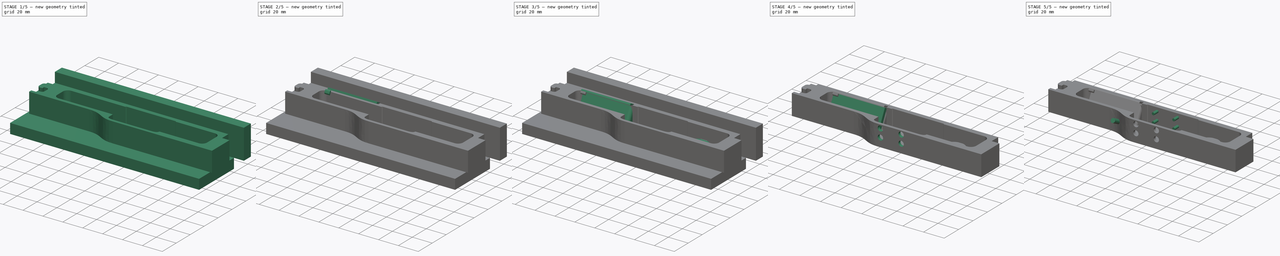
[diagram: build sequence overview — one tinted view per stage of 5, left to right]
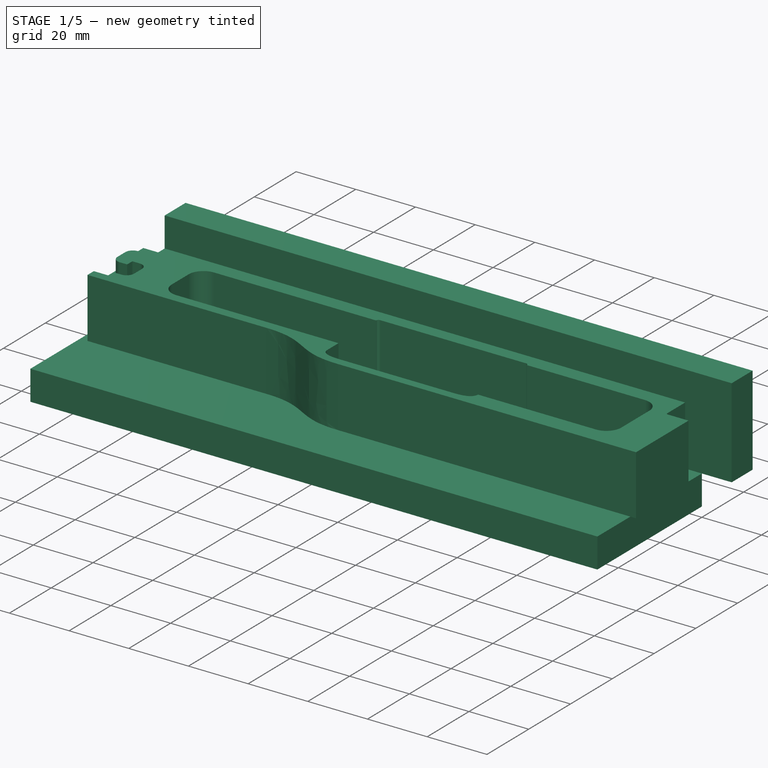
[diagram: stage 1 of 5 — iso view after this stage's code; geometry added in this stage tinted green]
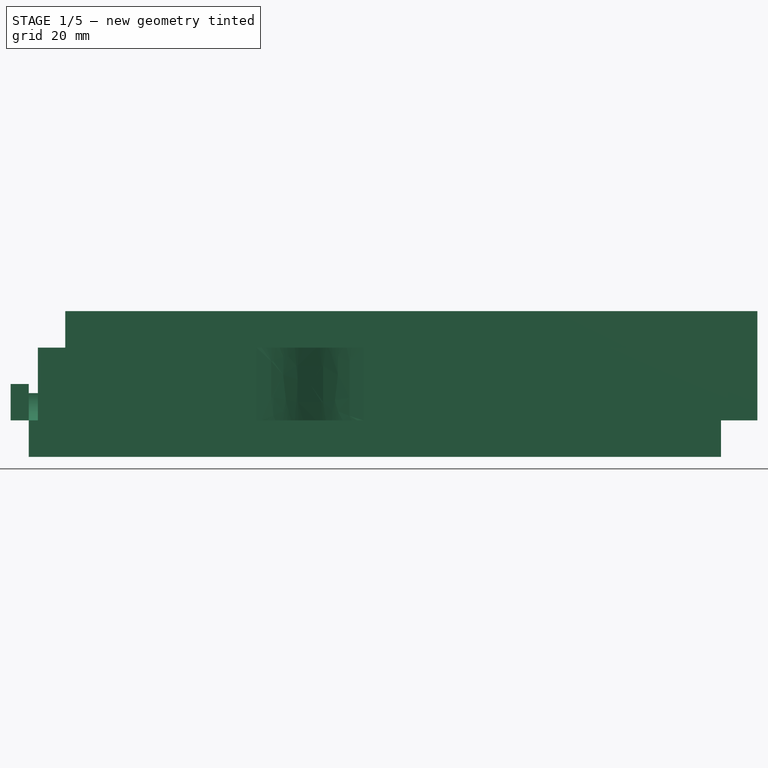
[diagram: stage 1 of 5 — front view after this stage's code; geometry added in this stage tinted green]
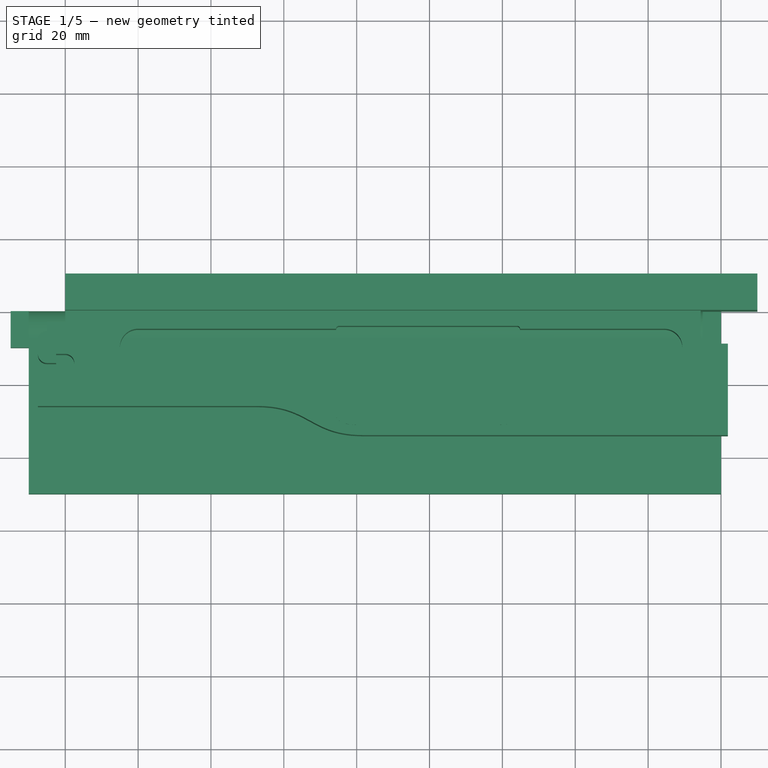
[diagram: stage 1 of 5 — top view after this stage's code; geometry added in this stage tinted green]
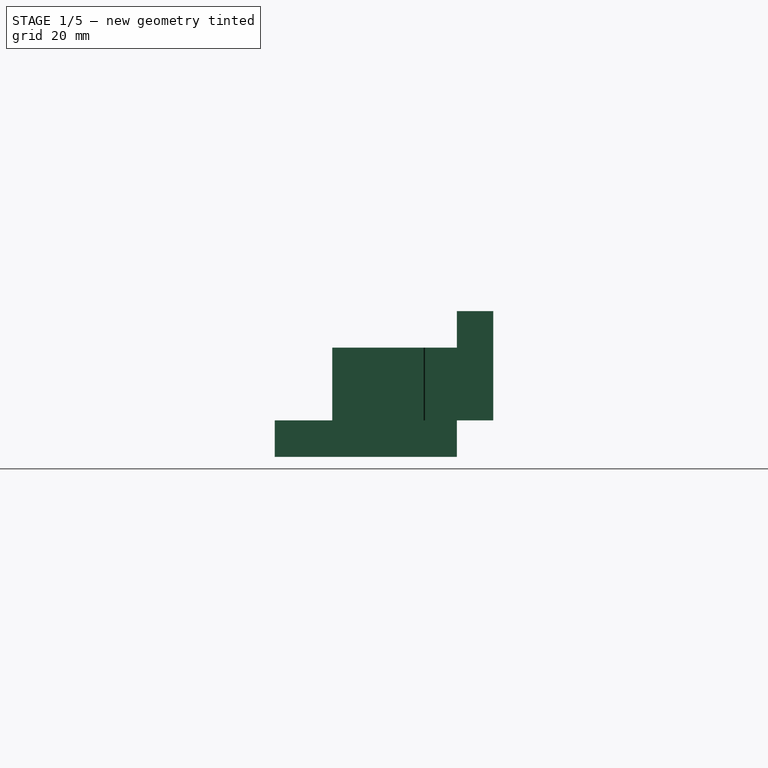
[diagram: stage 1 of 5 — right view after this stage's code; geometry added in this stage tinted green]
FCSTD DOCUMENT  (FreeCAD 0.19R0.19.2)
Label: v0_57
License: All rights reserved
LicenseURL: http://en.wikipedia.org/wiki/All_rights_reserved
objects: Sketcher::SketchObject×16, Part::Extrusion×15, Part::Fillet×8, Part::Cut×6, Part::Box×4, Part::Revolution×1, Part::MultiFuse×1
note: 51 computed .brp shape members not serialized (recipe doc carries the construction recipe); baked Part::Feature solids carry a one-line shape summary decoded from their .brp

FEATURE [Part::Extrusion] Extrude018  label="upperMainBodyExtrude018"
  Base = -> Sketch001
  Dir = (0,0,1)
  DirMode = 2
  FaceMakerClass = Part::FaceMakerBullseye
  LengthFwd = 20
  LengthRev = 0
  Solid = true
  Symmetric = false
FEATURE [Part::Box] Box  label="Cube"
  AttacherType = Attacher::AttachEngine3D
  Height = 10
  Length = 190
  Placement = pos=(-30,0,0) rot=(0,0,1;0rad)
  Width = 10
FEATURE [Part::Fillet] Fillet008
  Base = -> Box
  Edges = 1 edges r=7.5: [Edge11]
FEATURE [Part::Box] Box001  label="Cube001"
  AttacherType = Attacher::AttachEngine3D
  Height = 10
  Length = 190
  Placement = pos=(-35,0,0) rot=(0,0,1;0rad)
  Width = 10
FEATURE [Part::Cut] Cut  label="filletMain"
  Base = -> Box001
  Placement = pos=(0,-10,0) rot=(0,0,1;0rad)
  Tool = -> Fillet008
FEATURE [Part::Box] Box002  label="Cube002"
  AttacherType = Attacher::AttachEngine3D
  Height = 30
  Length = 190
  Placement = pos=(-20,0,0) rot=(0,0,1;0rad)
  Width = 10
FEATURE [Part::Box] Box003  label="Cube003"
  AttacherType = Attacher::AttachEngine3D
  Height = 10
  Length = 190
  Placement = pos=(-30,-50,-10) rot=(0,0,1;0rad)
  Width = 50
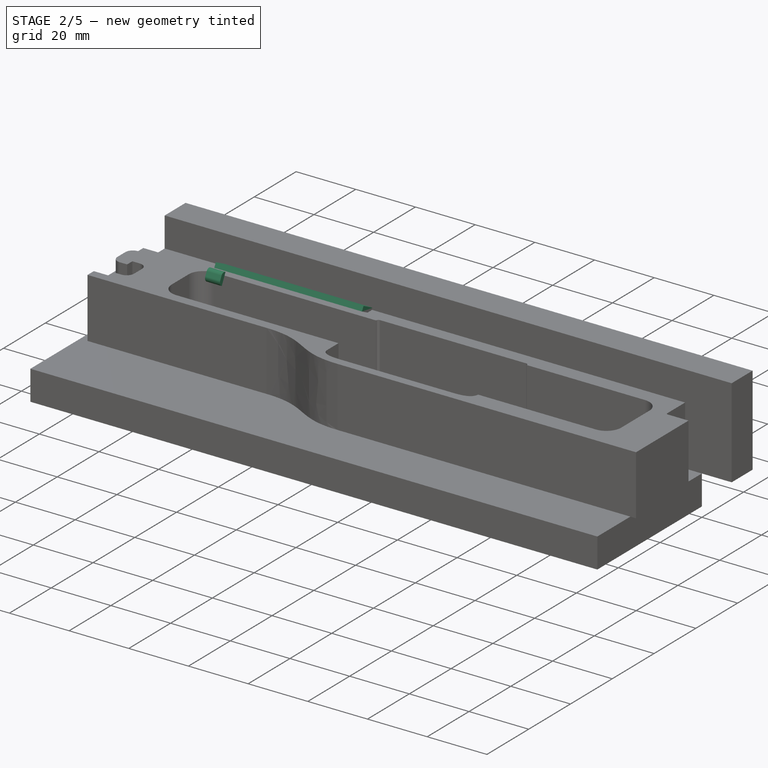
[diagram: stage 2 of 5 — iso view after this stage's code; geometry added in this stage tinted green]
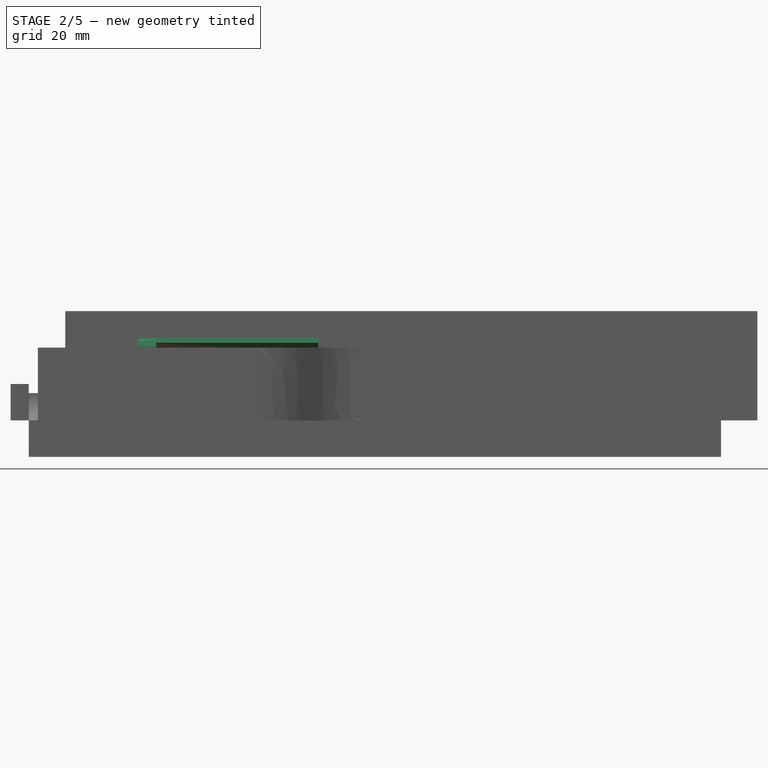
[diagram: stage 2 of 5 — front view after this stage's code; geometry added in this stage tinted green]
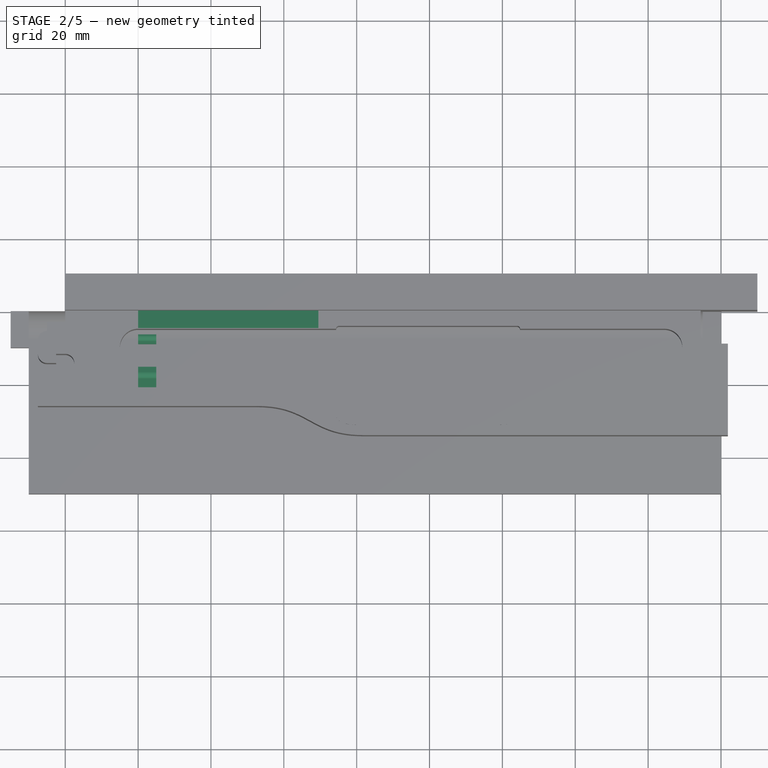
[diagram: stage 2 of 5 — top view after this stage's code; geometry added in this stage tinted green]
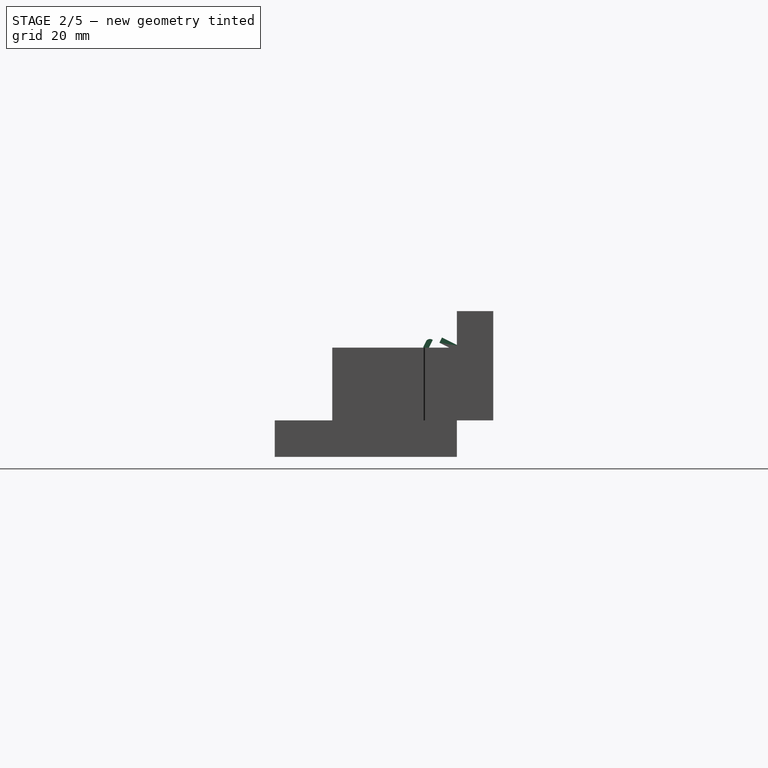
[diagram: stage 2 of 5 — right view after this stage's code; geometry added in this stage tinted green]
FEATURE [Part::Extrusion] Extrude010  label="solenoidDriverTopLipLowerExtrude010"
  Base = -> Sketch012
  Dir = (0,0.894389,-0.447291)
  DirMode = 2
  FaceMakerClass = Part::FaceMakerBullseye
  LengthFwd = 5.05
  LengthRev = 0
  Solid = true
  Symmetric = false
FEATURE [Sketcher::SketchObject] Sketch015
  FullyConstrained = true
  Placement = pos=(0,-14.3,2.37) rot=(-1,0,0;2.03453rad)
  sketch-geometry (4):
    g0: LineSegment StartX=0 StartY=1.5 StartZ=0 EndX=0 EndY=0 EndZ=0
    g1: LineSegment StartX=0 StartY=1.5 StartZ=0 EndX=5 EndY=1.5 EndZ=0
    g2: LineSegment StartX=5 StartY=1.5 StartZ=0 EndX=5 EndY=0 EndZ=0
    g3: LineSegment StartX=0 StartY=0 StartZ=0 EndX=5 EndY=0 EndZ=0
  constraints (13):
    c: Vertical(g0)
    c: Distance(g0) = 1.5
    c: Horizontal(g1)
    c: Distance(g1) = 5
    c: Coincident(g1,g0)
    c: Vertical(g2)
    c: Distance(g2) = 1.5
    c: Coincident(g2,g1)
    c: Block(g1)
    c: Block(g2)
    c: Block(g0)
    c: Coincident(g3,g0)
    c: Coincident(g3,g2)
FEATURE [Part::Extrusion] Extrude013  label="solenoidDriverBottomLipTopExtrude012"
  Base = -> Sketch015
  Dir = (0,0.894389,-0.447291)
  DirMode = 2
  FaceMakerClass = Part::FaceMakerBullseye
  LengthFwd = -6.5
  LengthRev = 0
  Placement = pos=(0,-14.15,19.65) rot=(1,0,0;1.5708rad)
  Solid = true
  Symmetric = false
FEATURE [Sketcher::SketchObject] Sketch017
  FullyConstrained = true
  Placement = pos=(0,-14.3,2.37) rot=(-1,0,0;2.03453rad)
  sketch-geometry (4):
    g0: LineSegment StartX=0 StartY=1.5 StartZ=0 EndX=0 EndY=0 EndZ=0
    g1: LineSegment StartX=0 StartY=1.5 StartZ=0 EndX=5 EndY=1.5 EndZ=0
    g2: LineSegment StartX=5 StartY=1.5 StartZ=0 EndX=5 EndY=0 EndZ=0
    g3: LineSegment StartX=0 StartY=0 StartZ=0 EndX=5 EndY=0 EndZ=0
  constraints (13):
    c: Vertical(g0)
    c: Distance(g0) = 1.5
    c: Horizontal(g1)
    c: Distance(g1) = 5
    c: Coincident(g1,g0)
    c: Vertical(g2)
    c: Distance(g2) = 1.5
    c: Coincident(g2,g1)
    c: Block(g1)
    c: Block(g2)
    c: Block(g0)
    c: Coincident(g3,g0)
    c: Coincident(g3,g2)
FEATURE [Part::Extrusion] Extrude016  label="solenoidDriverBottomLipTopExtrude013"
  Base = -> Sketch017
  Dir = (0,0.894389,-0.447291)
  DirMode = 2
  FaceMakerClass = Part::FaceMakerBullseye
  LengthFwd = -6.5
  LengthRev = 0
  Placement = pos=(0,-15.45,20.3) rot=(1,0,0;1.5708rad)
  Solid = true
  Symmetric = false
FEATURE [Part::Fillet] Fillet005  label="solenoidDriverBottomLipTopFillet005"
  Base = -> Extrude016
  Edges = 1 edges r=1.4: [Edge6]
FEATURE [Sketcher::SketchObject] Sketch018
  FullyConstrained = true
  Placement = pos=(0,-14.3,2.37) rot=(-1,0,0;2.03453rad)
  sketch-geometry (4):
    g0: LineSegment StartX=0 StartY=1.5 StartZ=0 EndX=0 EndY=0 EndZ=0
    g1: LineSegment StartX=0 StartY=1.5 StartZ=0 EndX=5 EndY=1.5 EndZ=0
    g2: LineSegment StartX=5 StartY=1.5 StartZ=0 EndX=5 EndY=0 EndZ=0
    g3: LineSegment StartX=0 StartY=0 StartZ=0 EndX=5 EndY=0 EndZ=0
  constraints (13):
    c: Vertical(g0)
    c: Distance(g0) = 1.5
    c: Horizontal(g1)
    c: Distance(g1) = 5
    c: Coincident(g1,g0)
    c: Vertical(g2)
    c: Distance(g2) = 1.5
    c: Coincident(g2,g1)
    c: Block(g1)
    c: Block(g2)
    c: Block(g0)
    c: Coincident(g3,g0)
    c: Coincident(g3,g2)
FEATURE [Part::Extrusion] Extrude017
  Base = -> Sketch018
  Dir = (0,0.894389,-0.447291)
  DirMode = 2
  FaceMakerClass = Part::FaceMakerBullseye
  LengthFwd = 4
  LengthRev = 0
  Placement = pos=(0,-7.85,33.5) rot=(1,0,0;1.5708rad)
  Solid = true
  Symmetric = false
FEATURE [Part::Fillet] Fillet006
  Base = -> Extrude017
  Edges = 1 edges r=1.24: [Edge7]
FEATURE [Part::Fillet] Fillet007  label="solenoidDriverLipTopOverlapFillet007"
  Base = -> Fillet006
  Edges = 1 edges r=1.4: [Edge8]
  Placement = pos=(0,0.5,0) rot=(0,0,1;0rad)
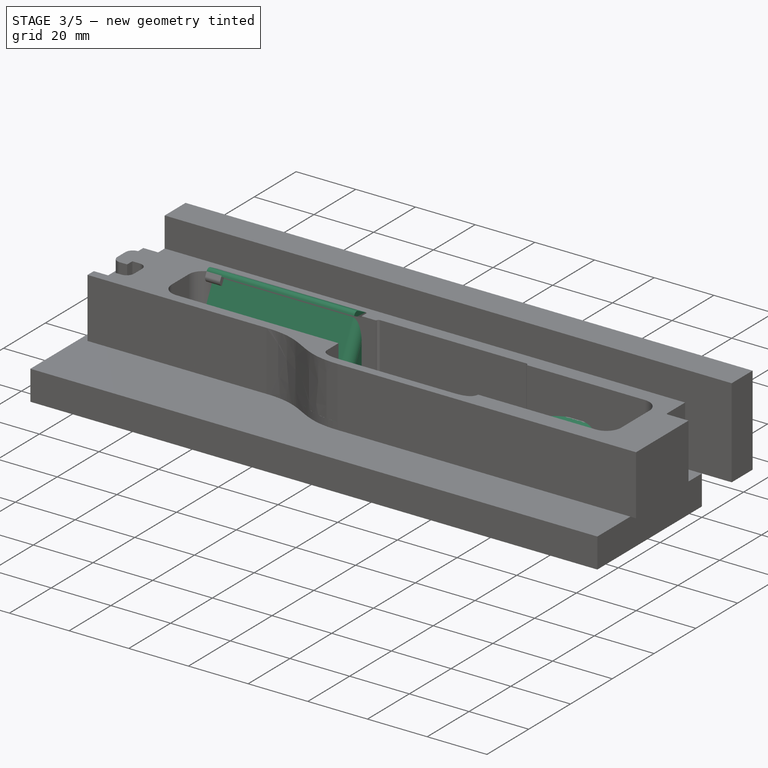
[diagram: stage 3 of 5 — iso view after this stage's code; geometry added in this stage tinted green]
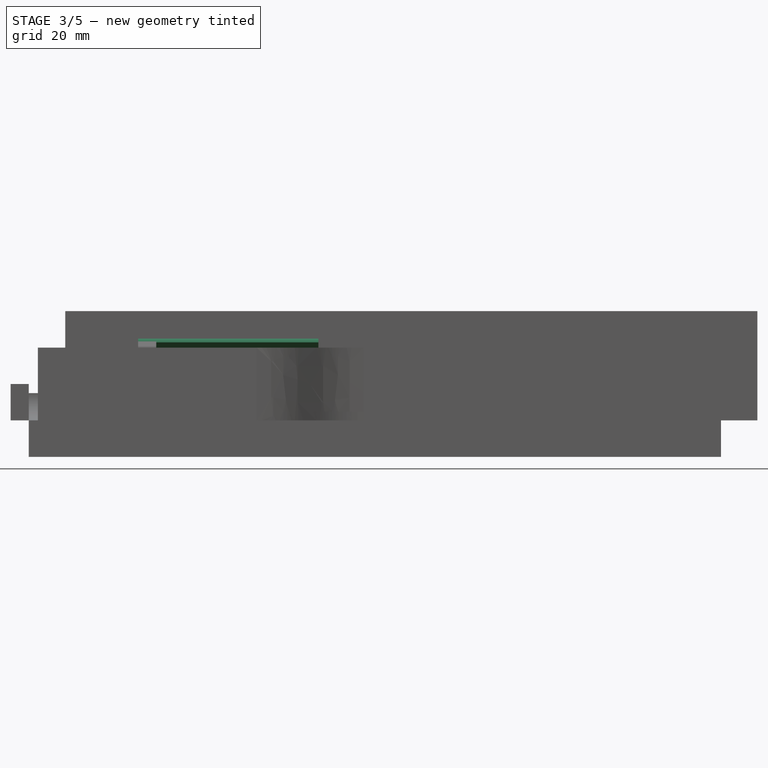
[diagram: stage 3 of 5 — front view after this stage's code; geometry added in this stage tinted green]
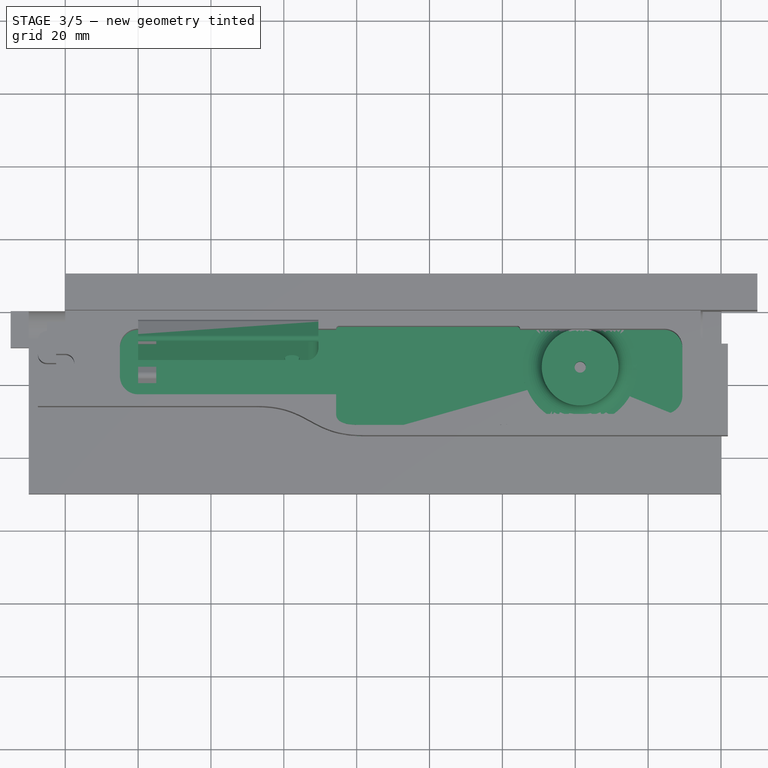
[diagram: stage 3 of 5 — top view after this stage's code; geometry added in this stage tinted green]
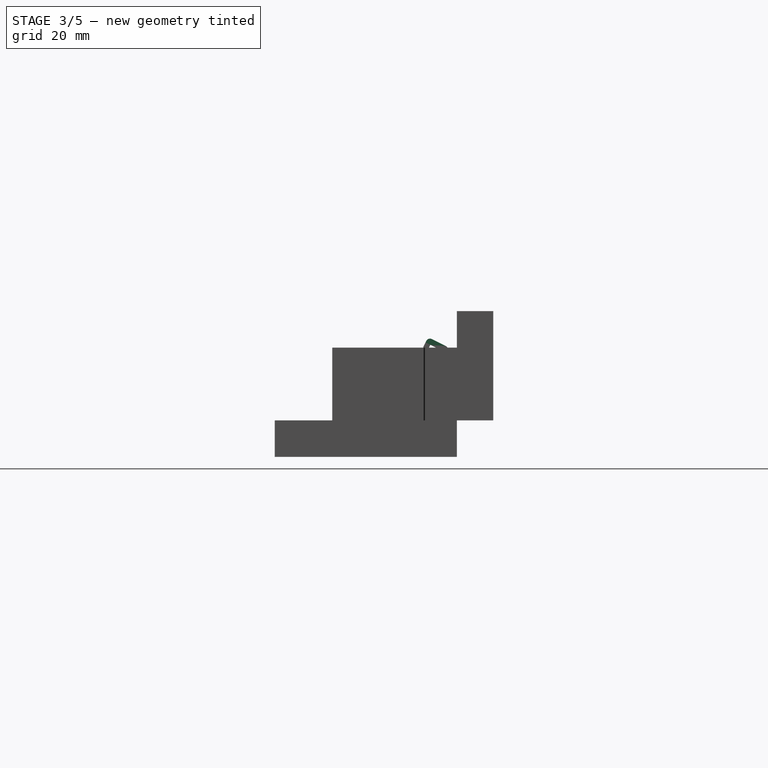
[diagram: stage 3 of 5 — right view after this stage's code; geometry added in this stage tinted green]
FEATURE [Sketcher::SketchObject] Sketch
  FullyConstrained = true
  sketch-geometry (36):
    g0: LineSegment StartX=0 StartY=0 StartZ=0 EndX=154.4 EndY=0 EndZ=0
    g1: LineSegment StartX=154.4 StartY=0 StartZ=0 EndX=154.4 EndY=-7.6 EndZ=0
    g2: LineSegment StartX=32.5209 StartY=-26.2 StartZ=0 EndX=-7.5 EndY=-26.2 EndZ=0
    g3: LineSegment StartX=61.85 StartY=-34.2 StartZ=0 EndX=161.9 EndY=-34.2 EndZ=0
    g4-g8: Circle x5 (B-spline internal-alignment scaffolding for g9; pole/knot coordinates omitted)
    g9: BSplineCurve PolesCount=5 KnotsCount=3 Degree=3 IsPeriodic=0
    g10: GeomPoint X=61.85 Y=-34.2 Z=0
    g11: GeomPoint X=47.185 Y=-30.2 Z=0
    g12: GeomPoint X=32.5209 Y=-26.2 Z=0
    g13: Circle CenterX=121.35 CenterY=-14.3 CenterZ=0 NormalX=0 NormalY=0 NormalZ=1 AngleXU=0 Radius=3.25
    g14: LineSegment StartX=-7.5 StartY=-26.2 StartZ=0 EndX=-27.5 EndY=-26.2 EndZ=0
    g15: LineSegment StartX=-20 StartY=0 StartZ=0 EndX=0 EndY=0 EndZ=0
    g16: LineSegment StartX=-25 StartY=-3.1 StartZ=0 EndX=-20 EndY=-3.1 EndZ=0
    g17: LineSegment StartX=-25 StartY=-3.1 StartZ=0 EndX=-25 EndY=-5.6 EndZ=0
    g18: LineSegment StartX=-27.5 StartY=-8.1 StartZ=0 EndX=-27.5 EndY=-11.85 EndZ=0
    g19: ArcOfCircle CenterX=-25 CenterY=-8.1 CenterZ=0 NormalX=0 NormalY=0 NormalZ=1 AngleXU=0 Radius=2.5 StartAngle=1.5708 EndAngle=3.14159
    g20: LineSegment StartX=-25 StartY=-14.35 StartZ=0 EndX=-22.5 EndY=-14.35 EndZ=0
    g21: ArcOfCircle CenterX=-25 CenterY=-11.85 CenterZ=0 NormalX=0 NormalY=0 NormalZ=1 AngleXU=0 Radius=2.5 StartAngle=3.14159 EndAngle=4.71239
    g22: LineSegment StartX=-22.5 StartY=-14.35 StartZ=0 EndX=-22.5 EndY=-11.85 EndZ=0
    g23: LineSegment StartX=-22.5 StartY=-11.85 StartZ=0 EndX=-20 EndY=-11.85 EndZ=0
    g24: ArcOfCircle CenterX=-20 CenterY=-14.35 CenterZ=0 NormalX=0 NormalY=0 NormalZ=1 AngleXU=0 Radius=2.5 StartAngle=8e-16 EndAngle=1.5708
    g25: LineSegment StartX=-17.5 StartY=-14.35 StartZ=0 EndX=-17.5 EndY=-18.1 EndZ=0
    g26: ArcOfCircle CenterX=-20 CenterY=-18.1 CenterZ=0 NormalX=0 NormalY=0 NormalZ=1 AngleXU=0 Radius=2.5 StartAngle=4.71239 EndAngle=6.28319
    g27: LineSegment StartX=-22.5 StartY=-20.6 StartZ=0 EndX=-20 EndY=-20.6 EndZ=0
    g28: LineSegment StartX=-22.5 StartY=-20.6 StartZ=0 EndX=-22.5 EndY=-23.1 EndZ=0
    g29: LineSegment StartX=-27.5 StartY=-23.1 StartZ=0 EndX=-22.5 EndY=-23.1 EndZ=0
    g30: LineSegment StartX=-20 StartY=-3.1 StartZ=0 EndX=-20 EndY=0 EndZ=0
    g31: LineSegment StartX=-27.5 StartY=-23.1 StartZ=0 EndX=-27.5 EndY=-26.2 EndZ=0
    g32: LineSegment StartX=154.4 StartY=-7.6 StartZ=0 EndX=154.4 EndY=-8.6 EndZ=0
    g33: ArcOfCircle CenterX=154.9 CenterY=-8.6 CenterZ=0 NormalX=0 NormalY=0 NormalZ=1 AngleXU=0 Radius=0.5 StartAngle=3.14159 EndAngle=4.71239
    g34: LineSegment StartX=154.9 StartY=-9.1 StartZ=0 EndX=161.9 EndY=-9.1 EndZ=0
    g35: LineSegment StartX=161.9 StartY=-34.2 StartZ=0 EndX=161.9 EndY=-9.1 EndZ=0
  constraints (72):
    c: PointOnObject(g0,g-2)
    c: Horizontal(g0)
    c: Distance(g0) = 154.4
    c: DistanceY(g-1,g0) = 0
    c: Vertical(g1)
    c: Distance(g1) = 7.6
    c: Coincident(g1,g0)
    c: Horizontal(g3)
    c: Horizontal(g2)
    c: Block(g2)
    c: Block(g3)
    c: Coincident(g9,g3)
    c: Weight(g4) = 1
    c: Equal(g4, g5-g8) x4
    c: Coincident(g9,g2)
    c: InternalAlignment(g4-g8 -> g9) x5
    c: InternalAlignment(g10,g9)
    c: InternalAlignment(g11,g9)
    c: InternalAlignment(g12,g9)
    c: Block(g9)
    c: Block(g13)
    c: Coincident(g14,g2)
    c: Horizontal(g14)
    c: Distance(g14) = 20
    c: Horizontal(g15)
    c: Distance(g15) = 20
    c: Coincident(g15,g0)
    c: Horizontal(g16)
    c: Vertical(g17)
    c: Coincident(g17,g16)
    c: Vertical(g18)
    c: Coincident(g19,g17)
    c: Block(g19)
    c: Coincident(g18,g19)
    c: Horizontal(g20)
    c: Coincident(g21,g18)
    c: Block(g21)
    c: Block(g20)
    c: Vertical(g22)
    c: Coincident(g22,g20)
    c: Horizontal(g23)
    c: Coincident(g23,g22)
    c: Coincident(g24,g23)
    c: Vertical(g25)
    c: Block(g24)
    c: Coincident(g25,g24)
    c: Coincident(g26,g25)
    c: Block(g26)
    c: Horizontal(g27)
    c: Coincident(g27,g26)
    c: Vertical(g28)
    c: Coincident(g28,g27)
    c: Horizontal(g29)
    c: Coincident(g29,g28)
    c: Block(g16)
    c: Block(g29)
    c: Coincident(g30,g16)
    c: Coincident(g30,g15)
    c: Vertical(g30)
    c: Coincident(g31,g29)
    c: Coincident(g31,g14)
    c: Vertical(g31)
    c: Vertical(g32)
    c: Distance(g32) = 1
    c: Coincident(g32,g1)
    c: Coincident(g33,g32)
    c: Block(g33)
    c: Coincident(g34,g33)
    c: Horizontal(g34)
    c: Coincident(g35,g3)
    c: Vertical(g35)
    c: Coincident(g34,g35)
FEATURE [Part::Extrusion] Extrude  label="mainBodyBaseExtrude"
  Base = -> Sketch
  Dir = (0,0,1)
  DirMode = 2
  FaceMakerClass = Part::FaceMakerBullseye
  LengthFwd = 2.4
  LengthRev = 0
  Solid = true
  Symmetric = false
FEATURE [Sketcher::SketchObject] Sketch004
  FullyConstrained = true
  Placement = pos=(0,0,0) rot=(1,0,0;1.5708rad)
  sketch-geometry (20):
    g0: LineSegment StartX=3.25 StartY=0 StartZ=0 EndX=3.25 EndY=-1.6 EndZ=0
    g1: LineSegment StartX=1.55 StartY=-1.6 StartZ=0 EndX=1.55 EndY=8 EndZ=0
    g2: LineSegment StartX=1.55 StartY=8 StartZ=0 EndX=3.25 EndY=8 EndZ=0
    g3: LineSegment StartX=3.25 StartY=8 StartZ=0 EndX=9.75 EndY=8 EndZ=0
    g4: LineSegment StartX=3.25 StartY=0 StartZ=0 EndX=12.95 EndY=0 EndZ=0
    g5: LineSegment StartX=12.95 StartY=0 StartZ=0 EndX=13.35 EndY=0 EndZ=0
    g6: LineSegment StartX=9.75 StartY=8 StartZ=0 EndX=10.15 EndY=8 EndZ=0
    g7: LineSegment StartX=13.35 StartY=0 StartZ=0 EndX=13.75 EndY=0 EndZ=0
    g8: LineSegment StartX=10.15 StartY=8 StartZ=0 EndX=10.55 EndY=8 EndZ=0
    g9: LineSegment StartX=13.75 StartY=0 StartZ=0 EndX=15.75 EndY=0 EndZ=0
    g10: LineSegment StartX=15.75 StartY=2.5 StartZ=0 EndX=15.75 EndY=0 EndZ=0
    g11: Circle CenterX=15.75 CenterY=2.5 CenterZ=0 NormalX=0 NormalY=0 NormalZ=1 AngleXU=0 Radius=1
    g12: Circle CenterX=10.55 CenterY=2.5 CenterZ=0 NormalX=0 NormalY=0 NormalZ=1 AngleXU=0 Radius=1
    g13: Circle CenterX=10.55 CenterY=8 CenterZ=0 NormalX=0 NormalY=0 NormalZ=1 AngleXU=0 Radius=1
    g14: BSplineCurve PolesCount=3 KnotsCount=2 Degree=2 IsPeriodic=0
    g15: GeomPoint X=15.75 Y=2.5 Z=0
    g16: GeomPoint X=10.55 Y=8 Z=0
    g17: LineSegment StartX=3.25 StartY=-1.6 StartZ=0 EndX=3.25 EndY=-2.4 EndZ=0
    g18: LineSegment StartX=1.55 StartY=-2.4 StartZ=0 EndX=3.25 EndY=-2.4 EndZ=0
    g19: LineSegment StartX=1.55 StartY=-1.6 StartZ=0 EndX=1.55 EndY=-2.4 EndZ=0
  constraints (53):
    c: Vertical(g0)
    c: Distance(g0) = 1.6
    c: Block(g0)
    c: Vertical(g1)
    c: Horizontal(g2)
    c: Coincident(g2,g1)
    c: Block(g1)
    c: Block(g2)
    c: Distance(g1) = 9.6
    c: Coincident(g3,g2)
    c: Horizontal(g3)
    c: Distance(g3) = 6.5
    c: Coincident(g4,g0)
    c: PointOnObject(g4,g-1)
    c: Horizontal(g4)
    c: Distance(g4) = 9.7
    c: Horizontal(g5)
    c: Distance(g5) = 0.4
    c: Coincident(g5,g4)
    c: Horizontal(g6)
    c: Distance(g6) = 0.4
    c: Coincident(g6,g3)
    c: Horizontal(g7)
    c: Distance(g7) = 0.4
    c: Coincident(g7,g5)
    c: Horizontal(g8)
    c: Coincident(g8,g6)
    c: Distance(g8) = 0.4
    c: Horizontal(g9)
    c: Distance(g9) = 2
    c: Coincident(g9,g7)
    c: Vertical(g10)
    c: Distance(g10) = 2.5
    c: Coincident(g10,g9)
    c: Coincident(g14,g10)
    c: Weight(g11) = 1
    c: Equal(g11,g12)
    c: Equal(g11,g13)
    c: Coincident(g14,g8)
    c: InternalAlignment(g11,g14)
    c: InternalAlignment(g12,g14)
    c: InternalAlignment(g13,g14)
    c: InternalAlignment(g15,g14)
    c: InternalAlignment(g16,g14)
    c: Block(g14)
    c: Vertical(g17)
    c: Distance(g17) = 0.8
    c: Coincident(g0,g17)
    c: Horizontal(g18)
    c: Coincident(g18,g17)
    c: Vertical(g19)
    c: Coincident(g18,g19)
    c: Block(g19)
FEATURE [Part::Revolution] Revolve  label="mainScrewStandRevolve"
  Angle = 360
  Axis = (0,0,1)
  Base = (0,0,0)
  FaceMakerClass = Part::FaceMakerBullseye
  Placement = pos=(121.35,-15.3,0) rot=(0,0,1;0rad)
  Solid = true
  Source = -> Sketch004
  Symmetric = false
FEATURE [Sketcher::SketchObject] Sketch007
  FullyConstrained = true
  Placement = pos=(0,-14.3,2.37) rot=(-1,0,0;2.03453rad)
  sketch-geometry (7):
    g0: LineSegment StartX=0 StartY=0 StartZ=0 EndX=45.5 EndY=0 EndZ=0
    g1: LineSegment StartX=0 StartY=0 StartZ=0 EndX=0 EndY=-21.2 EndZ=0
    g2: LineSegment StartX=0 StartY=-21.2 StartZ=0 EndX=45.5 EndY=-21.2 EndZ=0
    g3: Circle CenterX=42.25 CenterY=-3.15 CenterZ=0 NormalX=0 NormalY=0 NormalZ=1 AngleXU=0 Radius=2.05
    g4: LineSegment StartX=45.5 StartY=-21.2 StartZ=0 EndX=49.5 EndY=-21.2 EndZ=0
    g5: LineSegment StartX=45.5 StartY=0 StartZ=0 EndX=49.5 EndY=0 EndZ=0
    g6: LineSegment StartX=49.5 StartY=0 StartZ=0 EndX=49.5 EndY=-21.2 EndZ=0
  constraints (18):
    c: Coincident(g0,g-1)
    c: Horizontal(g0)
    c: Distance(g0) = 45.5
    c: Coincident(g1,g0)
    c: Vertical(g1)
    c: Coincident(g2,g1)
    c: Horizontal(g2)
    c: Block(g3)
    c: Horizontal(g4)
    c: Distance(g4) = 4
    c: Horizontal(g5)
    c: Distance(g5) = 4
    c: Coincident(g5,g0)
    c: Coincident(g6,g5)
    c: Coincident(g6,g4)
    c: Vertical(g6)
    c: Block(g2)
    c: Block(g6)
FEATURE [Part::Extrusion] Extrude005  label="solenoidDriverHolderExtrude005"
  Base = -> Sketch007
  Dir = (0,0.894389,-0.447291)
  DirMode = 2
  FaceMakerClass = Part::FaceMakerBullseye
  LengthFwd = 10
  LengthRev = 0
  Placement = pos=(0,0,-2) rot=(0,0,1;0rad)
  Solid = true
  Symmetric = false
FEATURE [Sketcher::SketchObject] Sketch009
  FullyConstrained = false
  Placement = pos=(0,-4.3,-2.6) rot=(-1,0,0;2.03453rad)
  sketch-geometry (1):
    g0: Circle CenterX=42.25 CenterY=-3.15 CenterZ=0 NormalX=0 NormalY=0 NormalZ=1 AngleXU=0 Radius=4.5
FEATURE [Part::Fillet] Fillet
  Base = -> Extrude005
  Edges = 1 edges r=3: [Edge9]
FEATURE [Sketcher::SketchObject] Sketch011
  FullyConstrained = true
  Placement = pos=(0,-14.3,2.37) rot=(-1,0,0;2.03453rad)
  sketch-geometry (4):
    g0: LineSegment StartX=49.5 StartY=-21.2 StartZ=0 EndX=49.5 EndY=-22.8 EndZ=0
    g1: LineSegment StartX=49.5 StartY=-22.8 StartZ=0 EndX=0.002238 EndY=-22.8 EndZ=0
    g2: LineSegment StartX=0.002238 StartY=-21.2 StartZ=0 EndX=0.002238 EndY=-22.8 EndZ=0
    g3: LineSegment StartX=49.5 StartY=-21.2 StartZ=0 EndX=0.002238 EndY=-21.2 EndZ=0
  constraints (10):
    c: Vertical(g0)
    c: Distance(g0) = 1.6
    c: Coincident(g1,g0)
    c: Horizontal(g1)
    c: Vertical(g2)
    c: Coincident(g2,g1)
    c: Coincident(g3,g0)
    c: Coincident(g3,g2)
    c: Horizontal(g3)
    c: Block(g3)
FEATURE [Part::Extrusion] Extrude009  label="solenoidDriverTopLipFront"
  Base = -> Sketch011
  Dir = (0,0.894389,-0.447291)
  DirMode = 2
  FaceMakerClass = Part::FaceMakerBullseye
  LengthFwd = -2
  LengthRev = 0
  Solid = true
  Symmetric = false
FEATURE [Sketcher::SketchObject] Sketch012
  FullyConstrained = true
  Placement = pos=(0,-14.3,2.37) rot=(-1,0,0;2.03453rad)
  sketch-geometry (4):
    g0: LineSegment StartX=49.5 StartY=-21.2 StartZ=0 EndX=49.5 EndY=-22.8 EndZ=0
    g1: LineSegment StartX=49.5 StartY=-22.8 StartZ=0 EndX=0.002238 EndY=-22.8 EndZ=0
    g2: LineSegment StartX=0.002238 StartY=-21.2 StartZ=0 EndX=0.002238 EndY=-22.8 EndZ=0
    g3: LineSegment StartX=49.5 StartY=-21.2 StartZ=0 EndX=0.002238 EndY=-21.2 EndZ=0
  constraints (10):
    c: Vertical(g0)
    c: Distance(g0) = 1.6
    c: Coincident(g1,g0)
    c: Horizontal(g1)
    c: Vertical(g2)
    c: Coincident(g2,g1)
    c: Coincident(g3,g0)
    c: Coincident(g3,g2)
    c: Horizontal(g3)
    c: Block(g3)
FEATURE [Part::Fillet] Fillet002  label="solenoidDriverTopLipFrontFillet002"
  Base = -> Extrude009
  Edges = 1 edges r=1.2: [Edge7]
  Placement = pos=(0,-2,-0.8) rot=(0,0,1;0rad)
FEATURE [Part::Fillet] Fillet003  label="solenoidDriverTopLipLowerFillet003"
  Base = -> Extrude010
  Edges = 1 edges r=1.2: [Edge7]
  Placement = pos=(0,-2.4,-0.6) rot=(0,0,1;0rad)
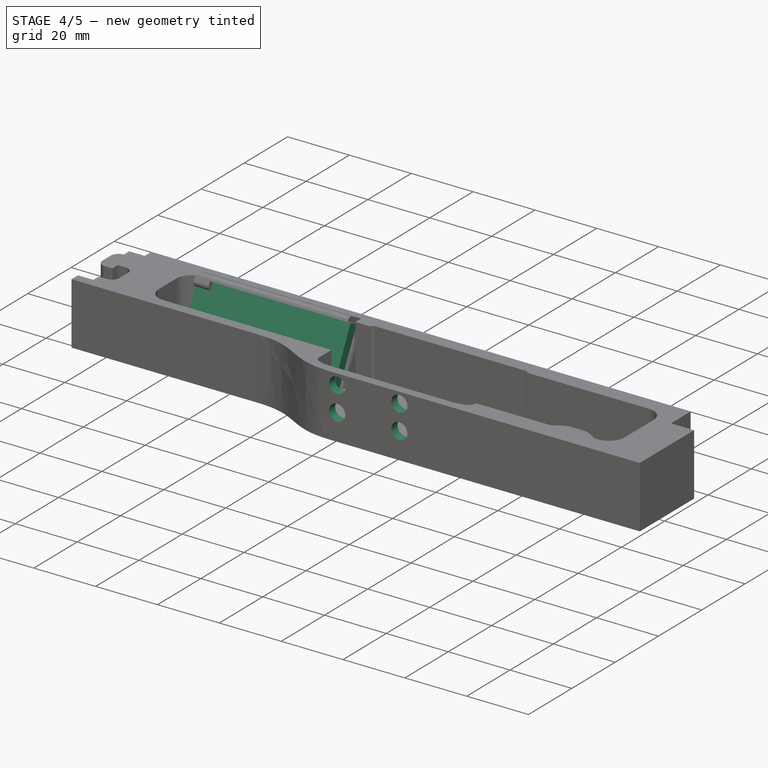
[diagram: stage 4 of 5 — iso view after this stage's code; geometry added in this stage tinted green]
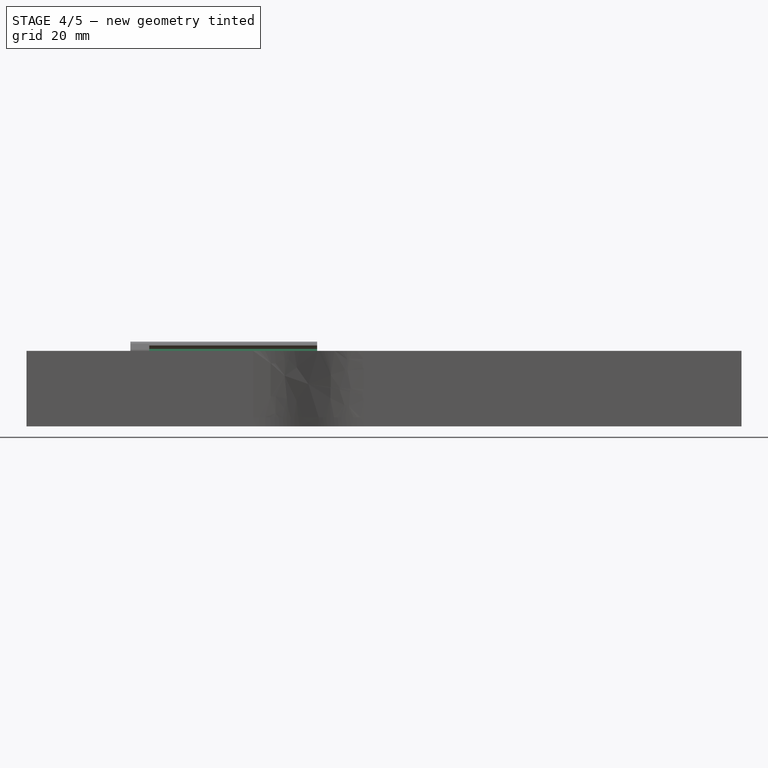
[diagram: stage 4 of 5 — front view after this stage's code; geometry added in this stage tinted green]
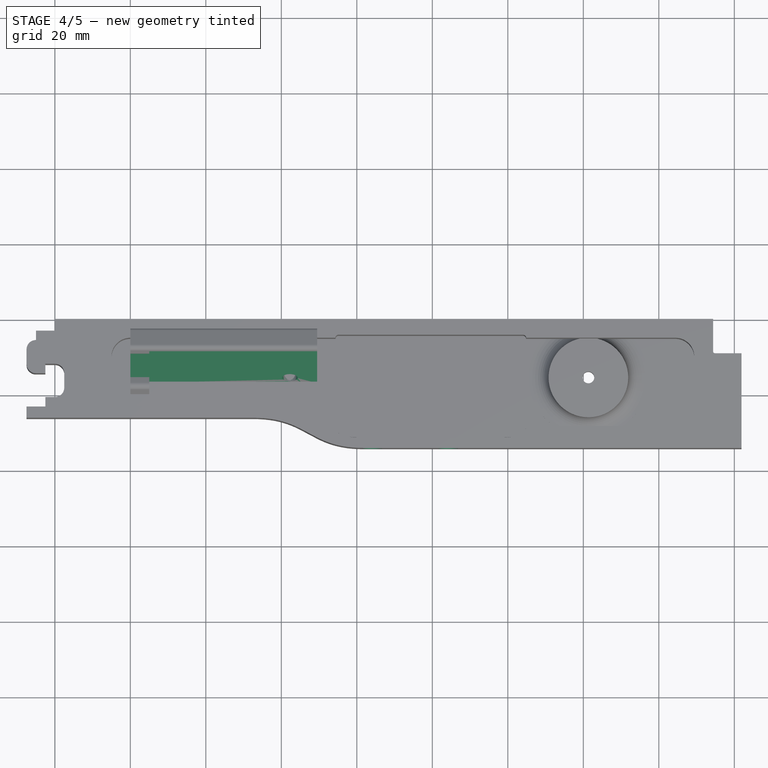
[diagram: stage 4 of 5 — top view after this stage's code; geometry added in this stage tinted green]
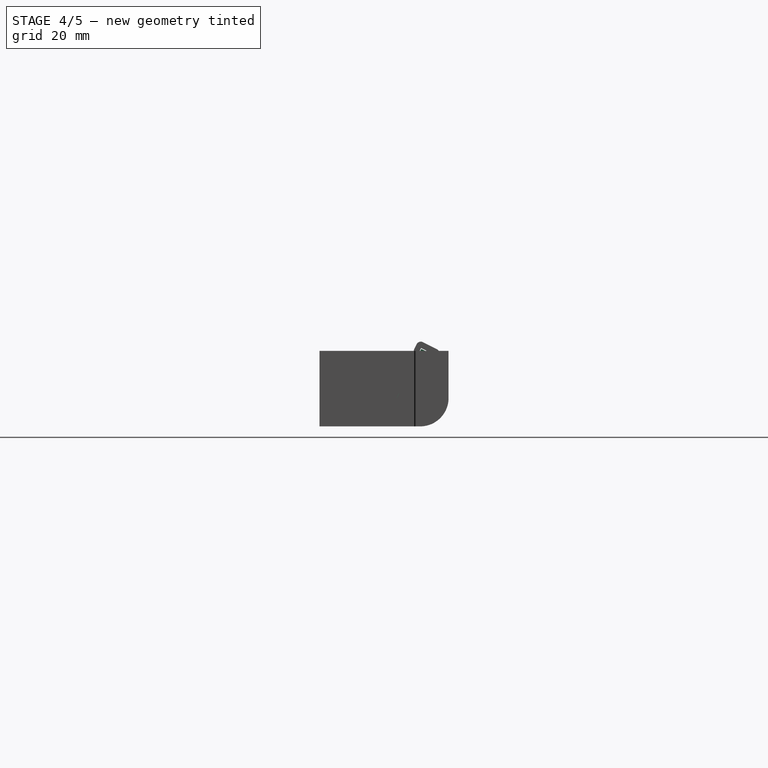
[diagram: stage 4 of 5 — right view after this stage's code; geometry added in this stage tinted green]
FEATURE [Sketcher::SketchObject] Sketch019
  FullyConstrained = true
  Placement = pos=(0,0,0) rot=(1,0,0;1.5708rad)
  sketch-geometry (4):
    g0: Circle CenterX=64.05 CenterY=16.5 CenterZ=0 NormalX=0 NormalY=0 NormalZ=1 AngleXU=0 Radius=2.6
    g1: Circle CenterX=64.05 CenterY=8.5 CenterZ=0 NormalX=0 NormalY=0 NormalZ=1 AngleXU=0 Radius=2.6
    g2: Circle CenterX=84.15 CenterY=16.5 CenterZ=0 NormalX=0 NormalY=0 NormalZ=1 AngleXU=0 Radius=2.6
    g3: Circle CenterX=84.15 CenterY=8.5 CenterZ=0 NormalX=0 NormalY=0 NormalZ=1 AngleXU=0 Radius=2.6
  constraints (4):
    c: Block(g0)
    c: Block(g2)
    c: Block(g3)
    c: Block(g1)
FEATURE [Part::Extrusion] Extrude019  label="removeSolenoidAdjusterHoles"
  Base = -> Sketch019
  Dir = (0,-1,1.1e-15)
  DirMode = 2
  FaceMakerClass = Part::FaceMakerBullseye
  LengthFwd = 6
  LengthRev = 0
  Placement = pos=(0,-30,0) rot=(0,0,1;0rad)
  Solid = true
  Symmetric = false
FEATURE [Sketcher::SketchObject] Sketch020
  FullyConstrained = true
  Placement = pos=(0,-14.3,2.37) rot=(-1,0,0;2.03453rad)
  sketch-geometry (7):
    g0: LineSegment StartX=0 StartY=0 StartZ=0 EndX=45.5 EndY=0 EndZ=0
    g1: LineSegment StartX=0 StartY=0 StartZ=0 EndX=0 EndY=-21.2 EndZ=0
    g2: LineSegment StartX=0 StartY=-21.2 StartZ=0 EndX=45.5 EndY=-21.2 EndZ=0
    g3: Circle CenterX=42.25 CenterY=-3.15 CenterZ=0 NormalX=0 NormalY=0 NormalZ=1 AngleXU=0 Radius=2.05
    g4: LineSegment StartX=45.5 StartY=-21.2 StartZ=0 EndX=49.5 EndY=-21.2 EndZ=0
    g5: LineSegment StartX=45.5 StartY=0 StartZ=0 EndX=49.5 EndY=0 EndZ=0
    g6: LineSegment StartX=49.5 StartY=0 StartZ=0 EndX=49.5 EndY=-21.2 EndZ=0
  constraints (18):
    c: Coincident(g0,g-1)
    c: Horizontal(g0)
    c: Distance(g0) = 45.5
    c: Coincident(g1,g0)
    c: Vertical(g1)
    c: Coincident(g2,g1)
    c: Horizontal(g2)
    c: Block(g3)
    c: Horizontal(g4)
    c: Distance(g4) = 4
    c: Horizontal(g5)
    c: Distance(g5) = 4
    c: Coincident(g5,g0)
    c: Coincident(g6,g5)
    c: Coincident(g6,g4)
    c: Vertical(g6)
    c: Block(g2)
    c: Block(g6)
FEATURE [Part::Extrusion] Extrude020  label="removeFromSolenoidDriverMainExtrude020"
  Base = -> Sketch020
  Dir = (0,0.894389,-0.447291)
  DirMode = 2
  FaceMakerClass = Part::FaceMakerBullseye
  LengthFwd = 3.1
  LengthRev = 0
  Placement = pos=(0,-2.42,-0.8) rot=(0,0,1;0rad)
  Solid = true
  Symmetric = false
FEATURE [Part::MultiFuse] Fusion
  Shapes = -> [Extrude018,Fillet007,Fillet005,Extrude013,Fillet003,Fillet002,Fillet,Revolve,Extrude]
FEATURE [Part::Cut] Cut001
  Base = -> Fusion
  Tool = -> Cut
FEATURE [Part::Cut] Cut002
  Base = -> Cut001
  Tool = -> Box002
FEATURE [Part::Cut] Cut003
  Base = -> Cut002
  Tool = -> Box003
FEATURE [Part::Cut] Cut004
  Base = -> Cut003
  Tool = -> Extrude019
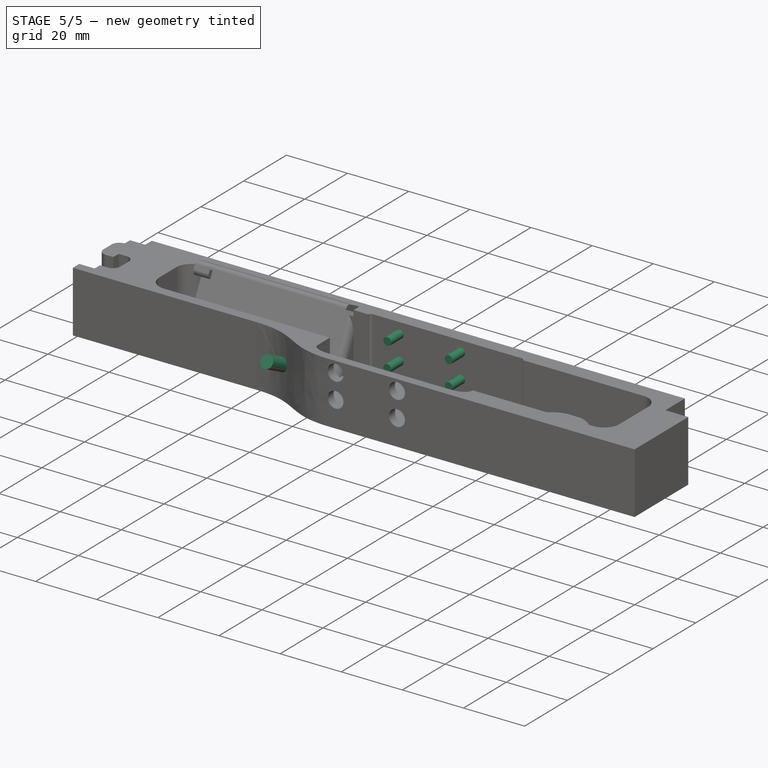
[diagram: stage 5 of 5 — iso view after this stage's code; geometry added in this stage tinted green]
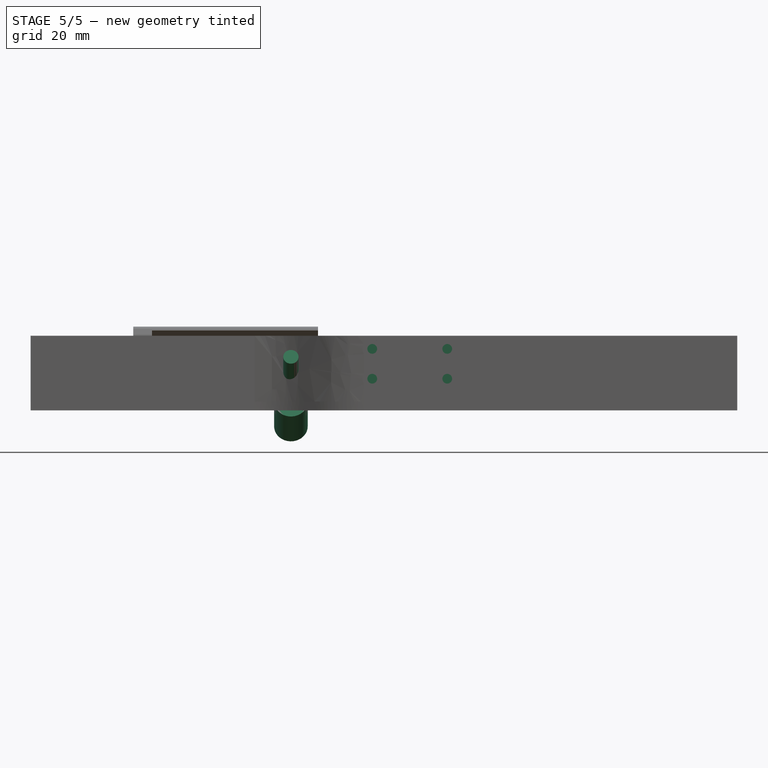
[diagram: stage 5 of 5 — front view after this stage's code; geometry added in this stage tinted green]
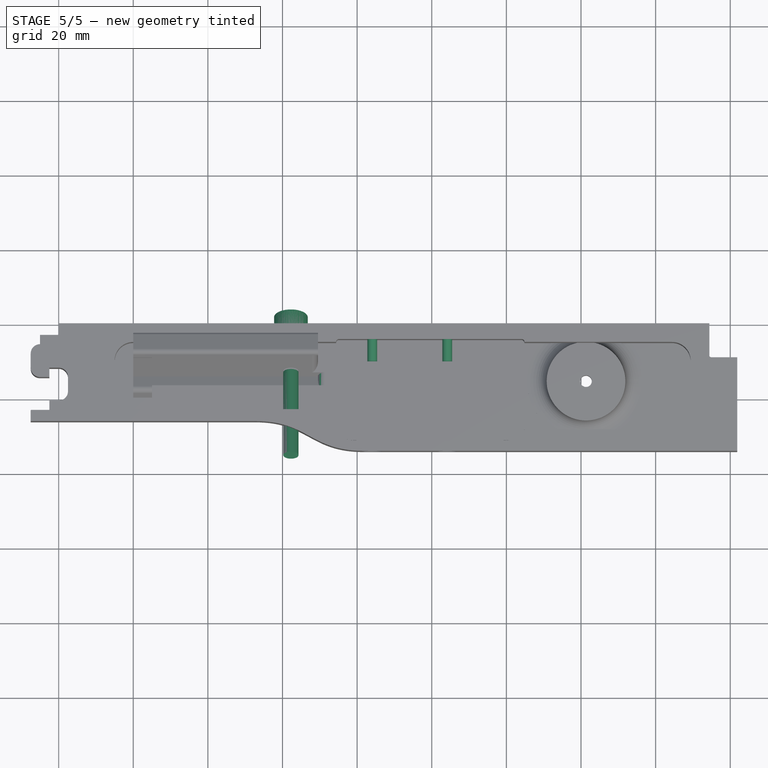
[diagram: stage 5 of 5 — top view after this stage's code; geometry added in this stage tinted green]
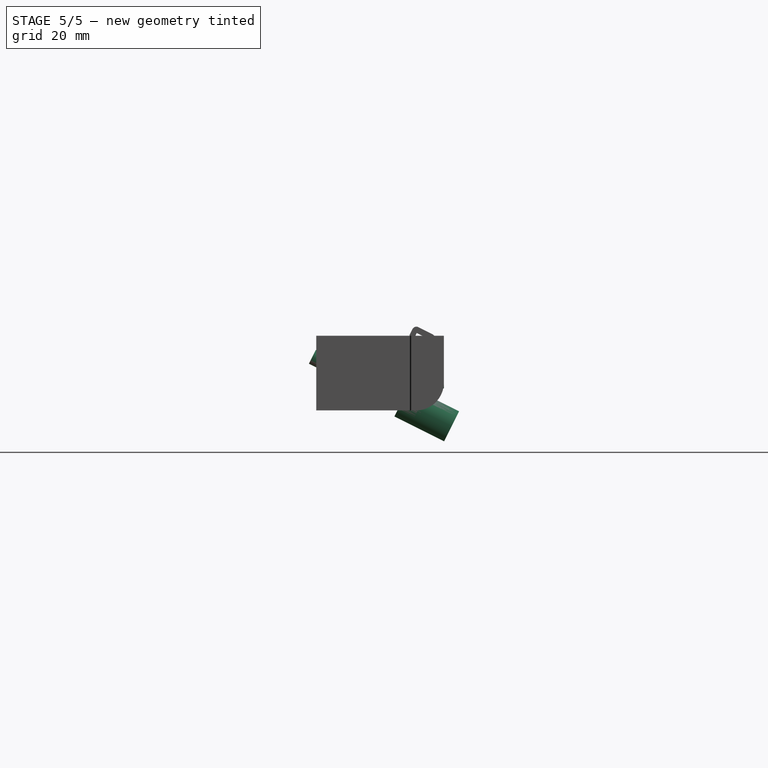
[diagram: stage 5 of 5 — right view after this stage's code; geometry added in this stage tinted green]
FEATURE [Sketcher::SketchObject] Sketch001
  FullyConstrained = false
  sketch-geometry (62):
    g0: ArcOfCircle CenterX=144.4 CenterY=-10 CenterZ=0 NormalX=0 NormalY=0 NormalZ=1 AngleXU=0 Radius=5 StartAngle=4.345e-13 EndAngle=1.5708
    g1: LineSegment StartX=32.5209 StartY=-26.2 StartZ=0 EndX=-7.49911 EndY=-26.2 EndZ=0
    g2: LineSegment StartX=61.85 StartY=-34.2 StartZ=0 EndX=161.9 EndY=-34.2 EndZ=0
    g3: LineSegment StartX=0 StartY=0 StartZ=0 EndX=154.4 EndY=0 EndZ=0
    g4-g8: Circle x5 (B-spline internal-alignment scaffolding for g9; pole/knot coordinates omitted)
    g9: BSplineCurve PolesCount=5 KnotsCount=3 Degree=3 IsPeriodic=0
    g10: GeomPoint X=61.85 Y=-34.2 Z=0
    g11: GeomPoint X=47.1857 Y=-30.2 Z=0
    g12: GeomPoint X=32.5209 Y=-26.2 Z=0
    g13: LineSegment StartX=154.4 StartY=0 StartZ=0 EndX=154.4 EndY=-7.6 EndZ=0
    g14: LineSegment StartX=20 StartY=-5 StartZ=0 EndX=54.35 EndY=-5 EndZ=0
    g15: LineSegment StartX=104.85 StartY=-5 StartZ=0 EndX=144.4 EndY=-5 EndZ=0
    g16: LineSegment StartX=54.35 StartY=-23 StartZ=0 EndX=20 EndY=-23 EndZ=0
    g17: LineSegment StartX=-27.4991 StartY=-26.2 StartZ=0 EndX=-7.49911 EndY=-26.2 EndZ=0
    g18: LineSegment StartX=-20 StartY=0 StartZ=0 EndX=0 EndY=0 EndZ=0
    g19: LineSegment StartX=-27.4991 StartY=-23.2 StartZ=0 EndX=-22.5 EndY=-23.2 EndZ=0
    g20: LineSegment StartX=-22.5 StartY=-20.7 StartZ=0 EndX=-22.5 EndY=-23.2 EndZ=0
    g21: LineSegment StartX=-22.5 StartY=-20.7 StartZ=0 EndX=-20 EndY=-20.7 EndZ=0
    g22: ArcOfCircle CenterX=-20 CenterY=-18.2 CenterZ=0 NormalX=0 NormalY=0 NormalZ=1 AngleXU=0 Radius=2.5 StartAngle=4.71239 EndAngle=6.28319
    g23: LineSegment StartX=-17.5 StartY=-14.4 StartZ=0 EndX=-17.5 EndY=-18.2 EndZ=0
    g24: ArcOfCircle CenterX=-20 CenterY=-14.4 CenterZ=0 NormalX=0 NormalY=0 NormalZ=1 AngleXU=0 Radius=2.5 StartAngle=9e-16 EndAngle=1.5708
    g25: LineSegment StartX=-22.5 StartY=-11.9 StartZ=0 EndX=-20 EndY=-11.9 EndZ=0
    g26: LineSegment StartX=-22.5 StartY=-14.4 StartZ=0 EndX=-22.5 EndY=-11.9 EndZ=0
    g27: LineSegment StartX=-25 StartY=-14.4 StartZ=0 EndX=-22.5 EndY=-14.4 EndZ=0
    g28: ArcOfCircle CenterX=-25 CenterY=-11.9 CenterZ=0 NormalX=0 NormalY=0 NormalZ=1 AngleXU=0 Radius=2.5 StartAngle=3.14159 EndAngle=4.71239
    g29: LineSegment StartX=-27.5 StartY=-8.1 StartZ=0 EndX=-27.5 EndY=-11.9 EndZ=0
    g30: ArcOfCircle CenterX=-25 CenterY=-8.1 CenterZ=0 NormalX=0 NormalY=0 NormalZ=1 AngleXU=0 Radius=2.5 StartAngle=1.5708 EndAngle=3.14159
    g31: LineSegment StartX=-25 StartY=-3.1 StartZ=0 EndX=-25 EndY=-5.6 EndZ=0
    g32: LineSegment StartX=-20 StartY=-3.1 StartZ=0 EndX=-25 EndY=-3.1 EndZ=0
    g33: LineSegment StartX=-20 StartY=0 StartZ=0 EndX=-20 EndY=-3.1 EndZ=0
    g34: LineSegment StartX=-27.4991 StartY=-26.2 StartZ=0 EndX=-27.4991 EndY=-23.2 EndZ=0
    g35: LineSegment StartX=4.09e-14 StartY=-5 StartZ=0 EndX=20 EndY=-5 EndZ=0
    g36: ArcOfCircle CenterX=7.1e-15 CenterY=-18 CenterZ=0 NormalX=0 NormalY=0 NormalZ=1 AngleXU=0 Radius=5 StartAngle=3.14159 EndAngle=4.71239
    g37: ArcOfCircle CenterX=4.26e-14 CenterY=-10 CenterZ=0 NormalX=0 NormalY=0 NormalZ=1 AngleXU=0 Radius=5 StartAngle=1.5708 EndAngle=3.14159
    g38: LineSegment StartX=-5 StartY=-18 StartZ=0 EndX=-5 EndY=-10 EndZ=0
    g39: LineSegment StartX=6.2e-15 StartY=-23 StartZ=0 EndX=20 EndY=-23 EndZ=0
    g40: LineSegment StartX=154.4 StartY=-7.6 StartZ=0 EndX=154.4 EndY=-8.6 EndZ=0
    g41: LineSegment StartX=154.9 StartY=-9.1 StartZ=0 EndX=161.9 EndY=-9.1 EndZ=0
    g42: LineSegment StartX=161.9 StartY=-34.2 StartZ=0 EndX=161.9 EndY=-9.1 EndZ=0
    g43: ArcOfCircle CenterX=154.9 CenterY=-8.6 CenterZ=0 NormalX=0 NormalY=0 NormalZ=1 AngleXU=0 Radius=0.5 StartAngle=3.14159 EndAngle=4.71299
    g44: Circle CenterX=60.35 CenterY=-31.4 CenterZ=0 NormalX=0 NormalY=0 NormalZ=1 AngleXU=0 Radius=1
    g45: BSplineCurve PolesCount=3 KnotsCount=2 Degree=2 IsPeriodic=0
    g46: GeomPoint X=54.35 Y=-28.4 Z=0
    g47: GeomPoint X=60.35 Y=-31.4 Z=0
    g48: LineSegment StartX=98.85 StartY=-31.4 StartZ=0 EndX=60.35 EndY=-31.4 EndZ=0
    g49: LineSegment StartX=54.35 StartY=-23 StartZ=0 EndX=54.35 EndY=-28.4 EndZ=0
    g50: LineSegment StartX=104.85 StartY=-28.3916 StartZ=0 EndX=144.408 EndY=-28.3916 EndZ=0
    g51: LineSegment StartX=149.4 StartY=-10 StartZ=0 EndX=149.4 EndY=-23.4 EndZ=0
    g52: ArcOfCircle CenterX=144.408 CenterY=-23.4 CenterZ=0 NormalX=0 NormalY=0 NormalZ=1 AngleXU=0 Radius=4.99164 StartAngle=4.71239 EndAngle=6.28319
    g53: Circle CenterX=98.85 CenterY=-31.4 CenterZ=0 NormalX=0 NormalY=0 NormalZ=1 AngleXU=0 Radius=1
    g54: Circle CenterX=104.85 CenterY=-31.4 CenterZ=0 NormalX=0 NormalY=0 NormalZ=1 AngleXU=0 Radius=1
    g55: Circle CenterX=104.85 CenterY=-28.3916 CenterZ=0 NormalX=0 NormalY=0 NormalZ=1 AngleXU=0 Radius=1
    g56: BSplineCurve PolesCount=3 KnotsCount=2 Degree=2 IsPeriodic=0
    g57: GeomPoint X=98.85 Y=-31.4 Z=0
    g58: GeomPoint X=104.85 Y=-28.3916 Z=0
    g59: LineSegment StartX=104.05 StartY=-4.2 StartZ=0 EndX=55.15 EndY=-4.2 EndZ=0
    g60: ArcOfCircle CenterX=104.05 CenterY=-5 CenterZ=0 NormalX=0 NormalY=0 NormalZ=1 AngleXU=0 Radius=0.8 StartAngle=0 EndAngle=1.5708
    g61: ArcOfCircle CenterX=55.15 CenterY=-5 CenterZ=0 NormalX=0 NormalY=0 NormalZ=1 AngleXU=0 Radius=0.8 StartAngle=1.57079 EndAngle=3.14159
  constraints (131):
    c: PointOnObject(g3,g-2)
    c: DistanceY(g-1,g3) = 0
    c: Block(g0)
    c: Horizontal(g2)
    c: Horizontal(g1)
    c: Distance(g1) = 40.02
    c: Horizontal(g3)
    c: Block(g2)
    c: Block(g3)
    c: Coincident(g9,g2)
    c: Weight(g4) = 1
    c: Equal(g4, g5-g8) x4
    c: Coincident(g9,g1)
    c: InternalAlignment(g4-g8 -> g9) x5
    c: InternalAlignment(g10,g9)
    c: InternalAlignment(g11,g9)
    c: InternalAlignment(g12,g9)
    c: Block(g9)
    c: Vertical(g13)
    c: Coincident(g13,g3)
    c: Distance(g13) = 7.6
    c: Block(g13)
    c: Horizontal(g14)
    c: Coincident(g15,g0)
    c: Horizontal(g15)
    c: Horizontal(g16)
    c: Horizontal(g17)
    c: Distance(g17) = 20
    c: Coincident(g1,g17)
    c: Horizontal(g18)
    c: Distance(g18) = 20
    c: Coincident(g18,g3)
    c: Horizontal(g32)
    c: Vertical(g31)
    c: Coincident(g30,g31)
    c: Vertical(g29)
    c: Block(g30)
    c: Coincident(g28,g29)
    c: Block(g28)
    c: Horizontal(g27)
    c: Coincident(g27,g28)
    c: Vertical(g26)
    c: Coincident(g26,g27)
    c: Horizontal(g25)
    c: Coincident(g24,g25)
    c: Block(g24)
    c: Vertical(g23)
    c: Coincident(g22,g23)
    c: Block(g22)
    c: Horizontal(g21)
    c: Coincident(g21,g22)
    c: Vertical(g20)
    c: Coincident(g20,g21)
    c: Horizontal(g19)
    c: Coincident(g19,g20)
    c: Coincident(g33,g18)
    c: Coincident(g33,g32)
    c: Vertical(g33)
    c: Coincident(g34,g17)
    c: Coincident(g34,g19)
    c: Vertical(g34)
    c: Block(g34)
    c: Block(g19)
    c: Block(g23)
    c: Block(g27)
    c: Block(g26)
    c: Block(g25)
    c: Block(g29)
    c: Block(g32)
    c: Block(g31)
    c: Horizontal(g35)
    c: Distance(g35) = 20
    c: Block(g36)
    c: Block(g37)
    c: Coincident(g38,g36)
    c: Coincident(g38,g37)
    c: Vertical(g38)
    c: Coincident(g39,g36)
    c: Coincident(g39,g16)
    c: Horizontal(g39)
    c: Block(g39)
    c: Block(g35)
    c: Block(g14)
    c: Vertical(g40)
    c: Distance(g40) = 1
    c: Coincident(g40,g13)
    c: Horizontal(g41)
    c: Coincident(g42,g2)
    c: Vertical(g42)
    c: Coincident(g42,g41)
    c: Distance(g42) = 25.1
    c: Coincident(g43,g40)
    c: Coincident(g43,g41)
    c: Block(g40)
    c: Block(g43)
    c: InternalAlignment(g46,g45)
    c: InternalAlignment(g47,g45)
    c: Block(g45)
    c: Coincident(g48,g45)
    c: Horizontal(g48)
    c: Coincident(g49,g16)
    c: Coincident(g49,g45)
    c: Vertical(g49)
    c: Horizontal(g50)
    c: Vertical(g51)
    c: Distance(g51) = 13.4
    c: Coincident(g51,g0)
    c: Block(g50)
    c: Block(g51)
    c: Coincident(g52,g51)
    c: Coincident(g52,g50)
    c: Block(g52)
    c: Block(g48)
    c: Coincident(g56,g48)
    c: Weight(g53) = 1
    c: Equal(g53,g54)
    c: Equal(g53,g55)
    c: Coincident(g56,g50)
    c: InternalAlignment(g53,g56)
    c: InternalAlignment(g54,g56)
    c: InternalAlignment(g55,g56)
    c: InternalAlignment(g57,g56)
    c: InternalAlignment(g58,g56)
    c: Block(g56)
    c: Horizontal(g59)
    c: Coincident(g60,g15)
    c: Coincident(g60,g59)
    c: Block(g60)
    c: Coincident(g61,g14)
    c: Coincident(g61,g59)
    c: Block(g61)
FEATURE [Sketcher::SketchObject] Sketch005
  FullyConstrained = true
  Placement = pos=(0,0,0) rot=(1,0,0;1.5708rad)
  sketch-geometry (4):
    g0: Circle CenterX=64.05 CenterY=8.5 CenterZ=0 NormalX=0 NormalY=0 NormalZ=1 AngleXU=0 Radius=1.3
    g1: Circle CenterX=84.15 CenterY=8.5 CenterZ=0 NormalX=0 NormalY=0 NormalZ=1 AngleXU=0 Radius=1.3
    g2: Circle CenterX=84.15 CenterY=16.5 CenterZ=0 NormalX=0 NormalY=0 NormalZ=1 AngleXU=0 Radius=1.3
    g3: Circle CenterX=64.05 CenterY=16.5 CenterZ=0 NormalX=0 NormalY=0 NormalZ=1 AngleXU=0 Radius=1.3
  constraints (4):
    c: Block(g0)
    c: Block(g3)
    c: Block(g2)
    c: Block(g1)
FEATURE [Part::Extrusion] Extrude004  label="removeFromMainBodyToCreateScrewHolesForSolenoidExtrude004"
  Base = -> Sketch005
  Dir = (0,-1,1.1e-15)
  DirMode = 2
  FaceMakerClass = Part::FaceMakerBullseye
  LengthFwd = 10
  LengthRev = 0
  Solid = true
  Symmetric = false
FEATURE [Sketcher::SketchObject] Sketch008
  FullyConstrained = false
  Placement = pos=(0,-4.3,-2.6) rot=(-1,0,0;2.03453rad)
  sketch-geometry (1):
    g0: Circle CenterX=42.25 CenterY=-3.15 CenterZ=0 NormalX=0 NormalY=0 NormalZ=1 AngleXU=0 Radius=4.5
FEATURE [Part::Extrusion] Extrude006  label="removeFromScrewHole1Extrude006"
  Base = -> Sketch008
  Dir = (0,0.894389,-0.447291)
  DirMode = 2
  FaceMakerClass = Part::FaceMakerBullseye
  LengthFwd = -6
  LengthRev = 0
  Placement = pos=(0,-3,-0.5) rot=(0,0,1;0rad)
  Solid = true
  Symmetric = false
FEATURE [Sketcher::SketchObject] Sketch010
  FullyConstrained = true
  Placement = pos=(0,-14.3,2.37) rot=(-1,0,0;2.03453rad)
  sketch-geometry (1):
    g0: Circle CenterX=42.25 CenterY=-3.15 CenterZ=0 NormalX=0 NormalY=0 NormalZ=1 AngleXU=0 Radius=2.05
  constraints (1):
    c: Block(g0)
FEATURE [Part::Extrusion] Extrude008  label="removeFromScrewHole3"
  Base = -> Sketch010
  Dir = (0,0.894389,-0.447291)
  DirMode = 2
  FaceMakerClass = Part::FaceMakerBullseye
  LengthFwd = -25
  LengthRev = 0
  Placement = pos=(0,0,-2) rot=(0,0,1;0rad)
  Solid = true
  Symmetric = false
FEATURE [Sketcher::SketchObject] Sketch016
  FullyConstrained = true
  Placement = pos=(0,0,0) rot=(1,0,0;1.5708rad)
  sketch-geometry (4):
    g0: Circle CenterX=64.05 CenterY=16.5 CenterZ=0 NormalX=0 NormalY=0 NormalZ=1 AngleXU=0 Radius=2.6
    g1: Circle CenterX=64.05 CenterY=8.5 CenterZ=0 NormalX=0 NormalY=0 NormalZ=1 AngleXU=0 Radius=2.6
    g2: Circle CenterX=84.15 CenterY=16.5 CenterZ=0 NormalX=0 NormalY=0 NormalZ=1 AngleXU=0 Radius=2.6
    g3: Circle CenterX=84.15 CenterY=8.5 CenterZ=0 NormalX=0 NormalY=0 NormalZ=1 AngleXU=0 Radius=2.6
  constraints (4):
    c: Block(g0)
    c: Block(g2)
    c: Block(g3)
    c: Block(g1)
FEATURE [Part::Extrusion] Extrude014  label="removeFromMainBodyToCreateScrewHoleCounterSinks"
  Base = -> Sketch016
  Dir = (0,-1,1.1e-15)
  DirMode = 2
  FaceMakerClass = Part::FaceMakerBullseye
  LengthFwd = 1.9
  LengthRev = 0
  Solid = true
  Symmetric = false
FEATURE [Part::Extrusion] Extrude015  label="removeFromScrewHole2Extrude007"
  Base = -> Sketch009
  Dir = (0,0.894389,-0.447291)
  DirMode = 2
  FaceMakerClass = Part::FaceMakerBullseye
  LengthFwd = 10
  LengthRev = 0
  Placement = pos=(0,-4,0) rot=(0,0,1;0rad)
  Solid = true
  Symmetric = false
FEATURE [Part::Cut] Cut005
  Base = -> Cut004
  Tool = -> Extrude020
FEATURE [Part::Fillet] Fillet009
  Base = -> Cut005
  Edges = 1 edges r=2: [Edge355]
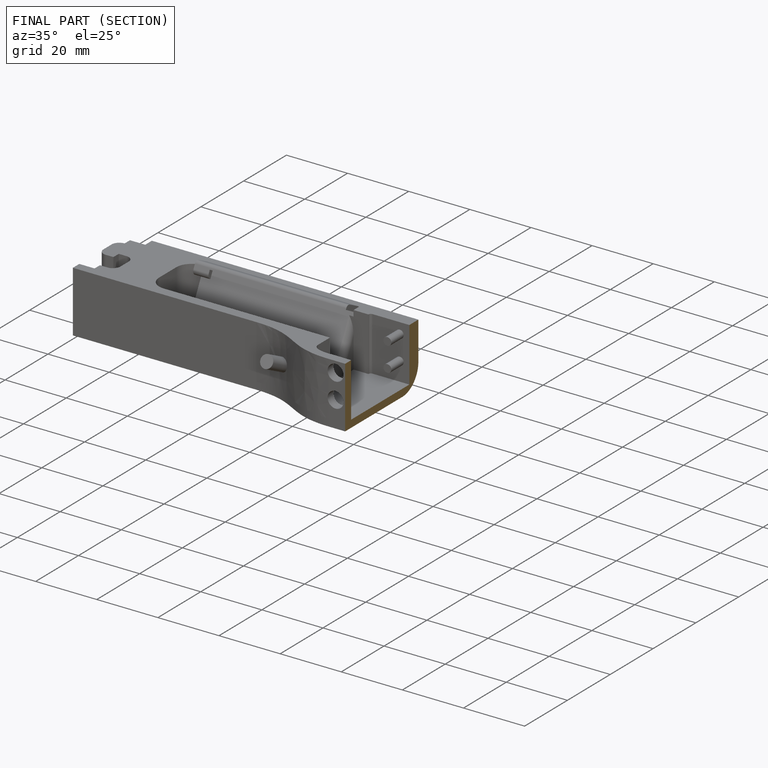
[diagram: finished part — half-section view (interior)]
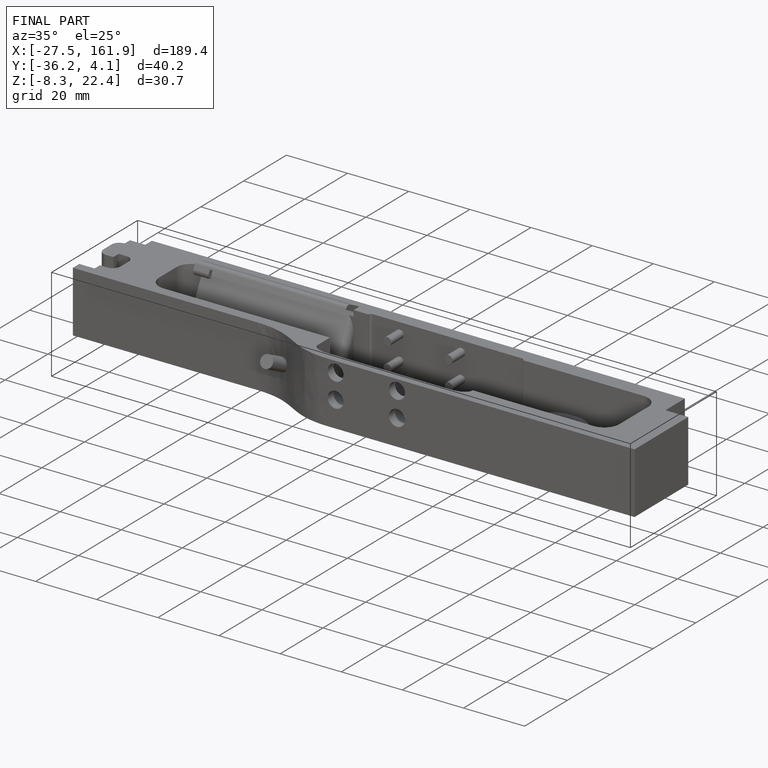
[diagram: finished part — iso view with bounding-box wireframe]
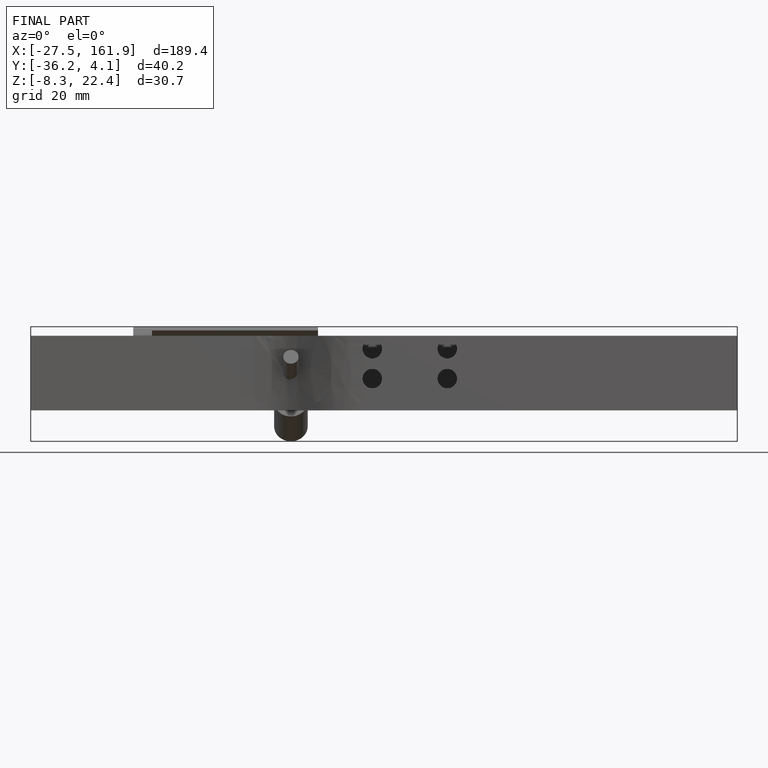
[diagram: finished part — front view with bounding-box wireframe]
